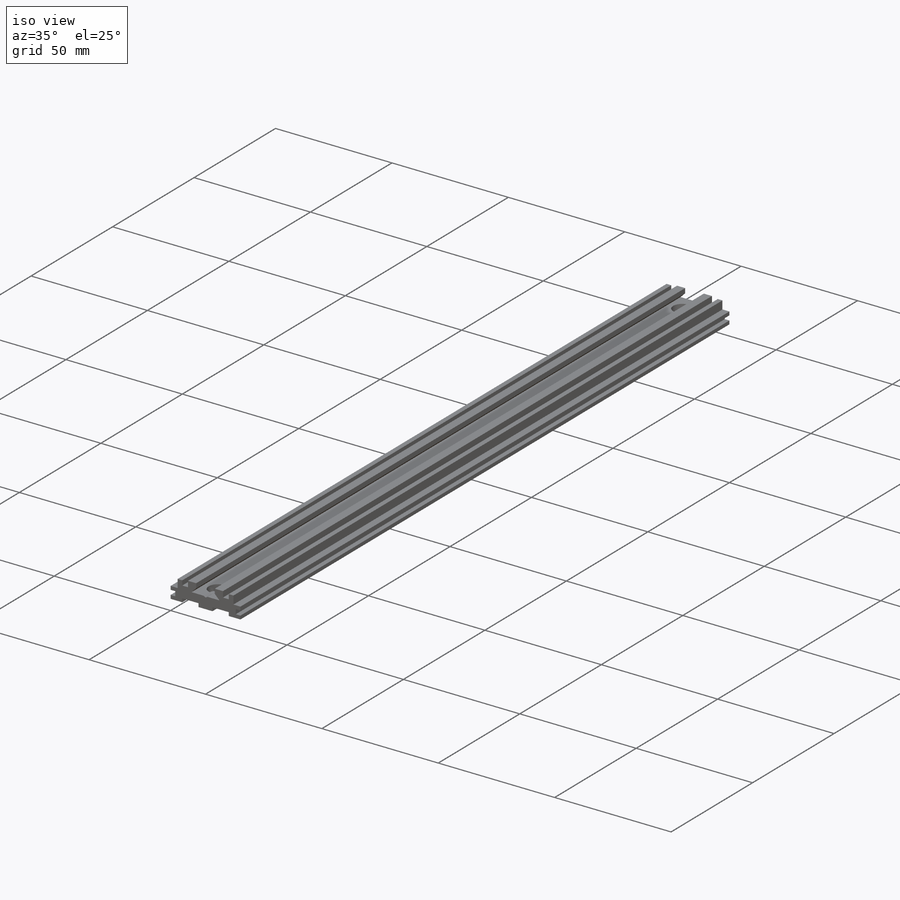
[diagram: iso view]
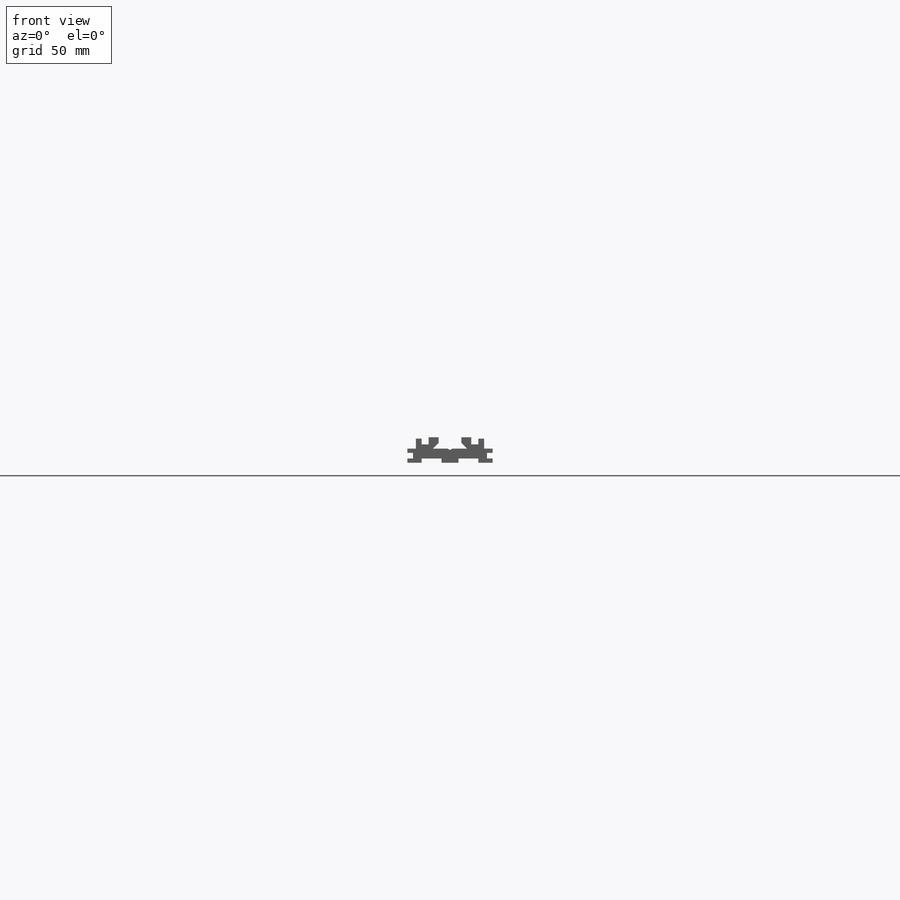
[diagram: front view]
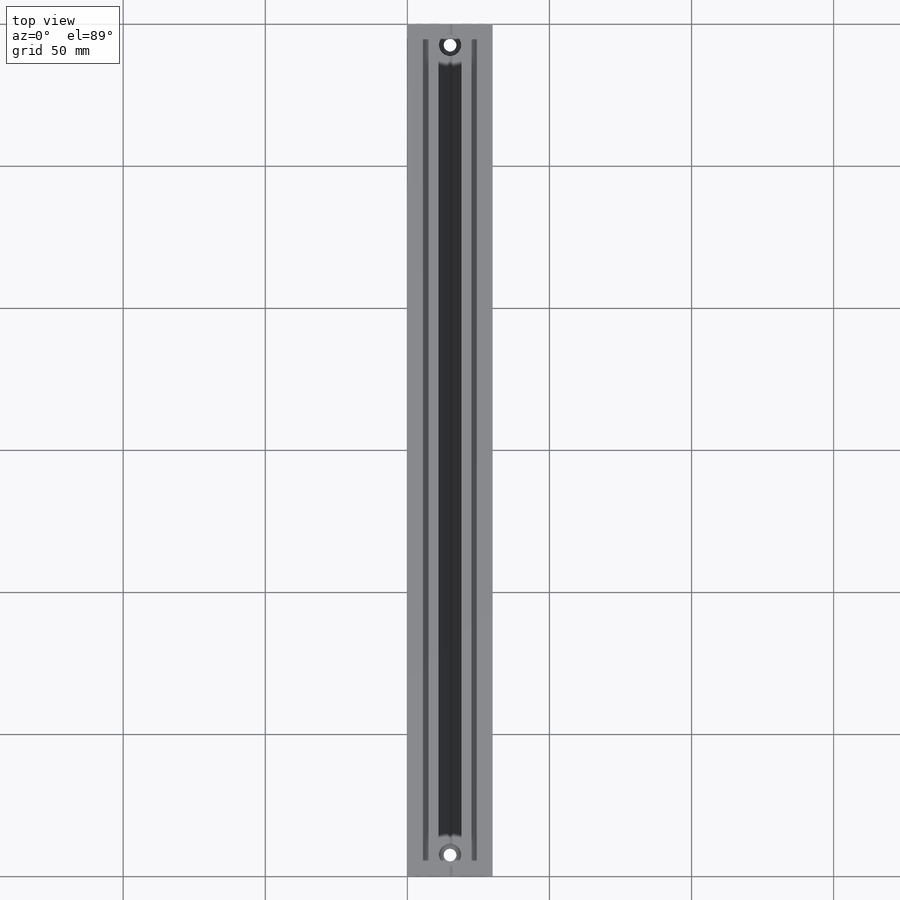
[diagram: top view]
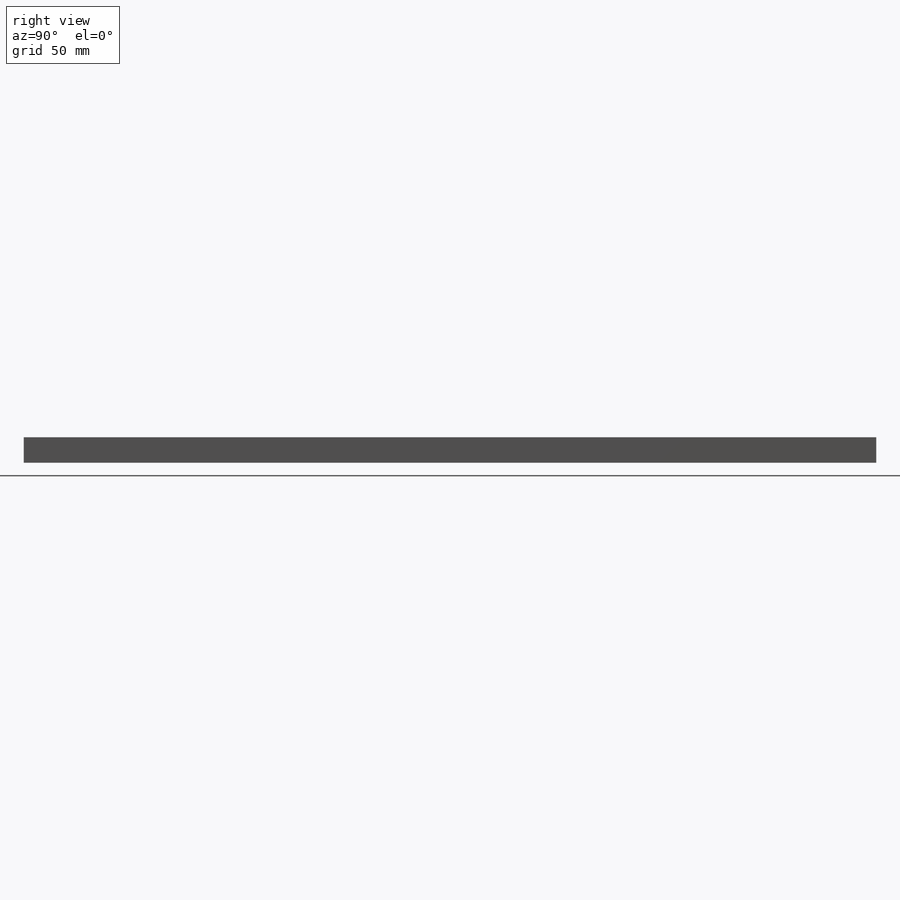
[diagram: right view]
SOLIDWORKS PART (.sldprt)
format: sldprt  version: not decoded by parser v0  size: 372,736 bytes
history: native  units: mm
features: sketch x4, plane x3, cut_extrude x3, material x1, extrude x1, mirror x1 (+13 scaffold rows collapsed)
feature tree (26):
  scaffold x13  (default folders/planes/origin — collapsed)
  material  "6061 合金"
  plane  "前视基准面"
  plane  "上视基准面"
  plane  "右视基准面"
  sketch  "草图1"  dims[c1.D1=30.0mm c1.D2=15.0mm c1.D3=9.0mm c1.D4=5.0mm c1.D5=1.0mm c1.D6=2.0mm c2.D6=90.0deg c2.D7=2.3mm c3.D7=100.0deg c3.D8=7.0mm c3.D9=12.0mm c3.D10=~10.115853mm c4.D10=30.0deg c4.D11=~8.956511mm c5.D11=90.0deg c5.D12=8.0mm c5.D13=4.5mm c5.D14=~5.253494mm c6.D14=105.0deg c6.D15=2.0mm c6.D16=~16.437822mm c6.D5=5.0mm c6.D12=15.0mm c7.D16=~13.18484mm c7.D17=45.0deg c8.D17=6.0mm c8.D18=6.0mm c9.D17=6.0mm c9.D18=6.0mm c9.D4=4.0mm c9.D16=2.3mm c9.D8=24.6mm c10.D17=~6.685641mm c10.D13=6.0mm c10.D8=24.0mm c10.D10=5.0mm c10.D11=20.0mm c11.D13=1.5mm c11.D14=8.0mm c11.D16=12.0mm c11.D15=11.0mm c11.D6=30.0mm c11.D2=30.0mm c12.D6=~1.642222mm c13.D6=90.0deg c13.D7=8.5mm c13.D10=6.5mm c13.D13=1.5mm c13.D15=2.0mm c13.D16=2.0mm]
  extrude  "凸台-拉伸1"  Depth=300mm
  sketch  "草图3"  dims[c1.D1=~0.574621mm c2.D1=120.0deg c2.D2=0.5mm c2.D3=6.0mm c2.D4=7.0mm c2.D5=7.0mm c2.D6=1.5mm c2.D7=1.5mm]
  cut_extrude  "切除-拉伸2"  [1 undecoded]
  sketch  "草图4"  dims[D1=4.5mm D2=7.5mm]
  cut_extrude  "切除-拉伸3"  [1 undecoded]
  sketch  "草图5"  dims[D1=7.8mm]
  cut_extrude  "切除-拉伸4"  Depth=2.5mm
  mirror  "镜向1"
decode coverage: 6 of 9 modeling features carry decoded parameters
note: ~ marks probable driven/reference dimensions
note: 2 parameter values undecoded
note: suppression state not decoded; provenance and decode notes live in map.json
